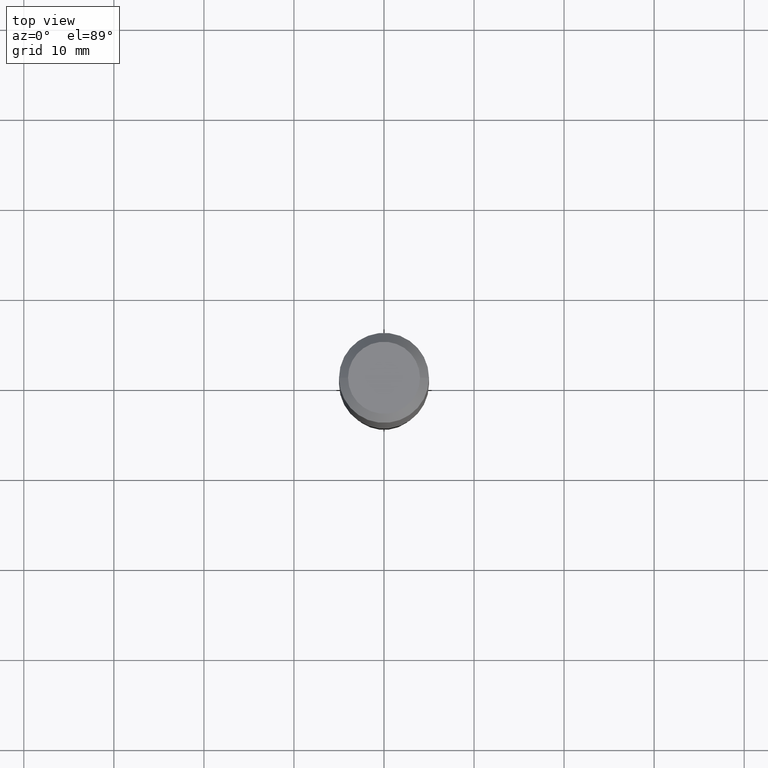
[diagram: clean part render]
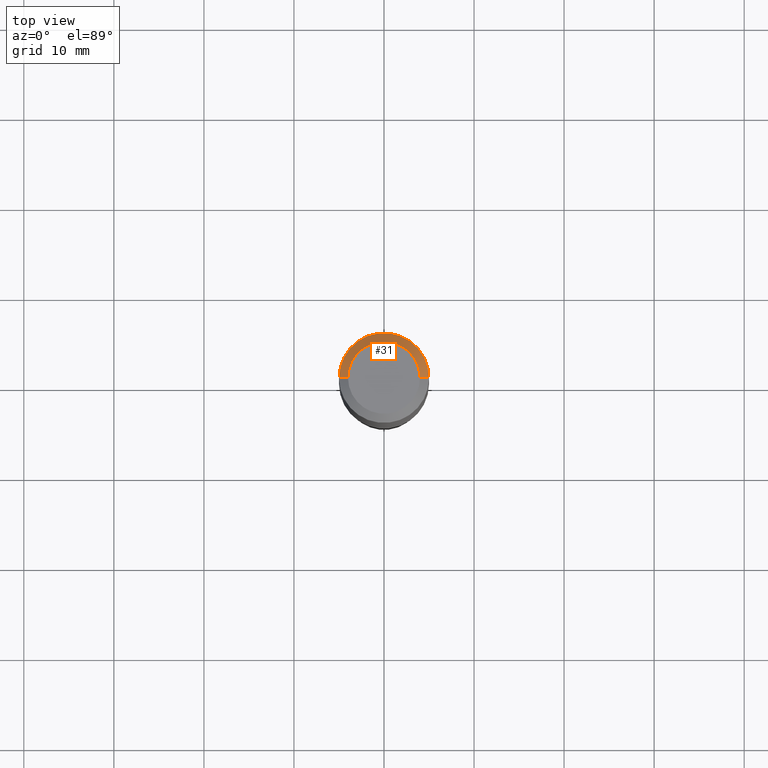
[diagram: same view with one face highlighted and labeled with its STEP entity id]
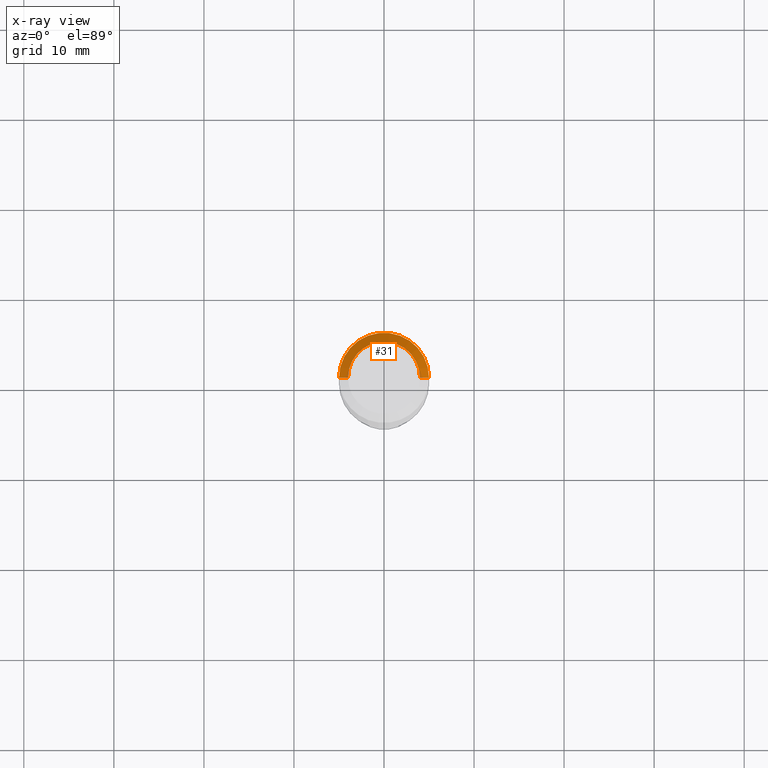
[diagram: x-ray of the same camera — body ghosted, the highlighted face saturated]
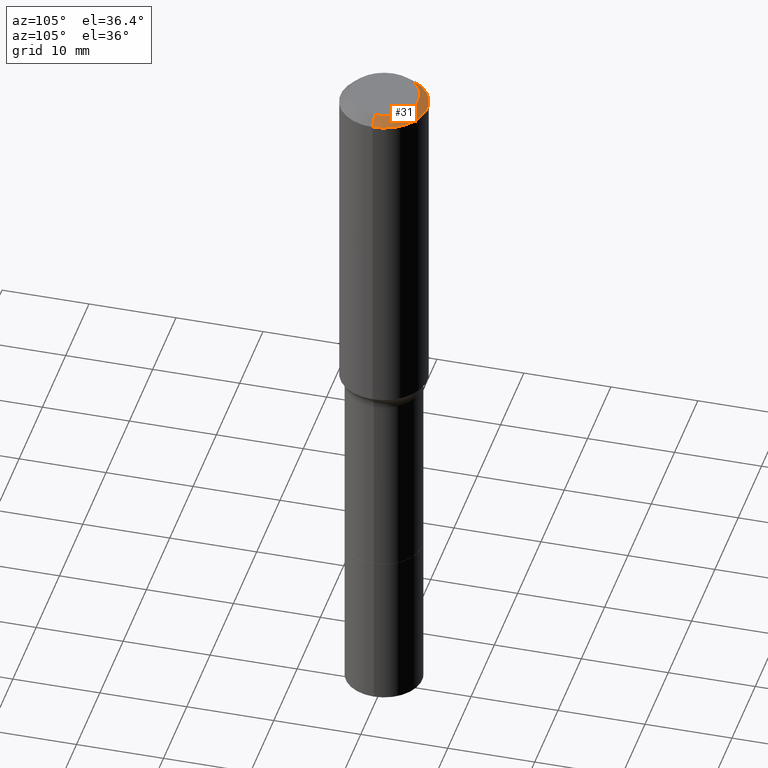
[diagram: same view with one face highlighted and labeled with its STEP entity id]
A machine part, top view. The second image highlights one B-rep face of the part: STEP entity #31.
The next image is the same camera in x-ray: the body ghosted, the highlighted face saturated — about 0% of this face is hidden behind the body in this view.
A second angle (auxiliary view) of the same face is appended — the face is thin or edge-on in the first view.
In plain terms, the highlighted conical surface has half-angle 45 deg.
Its self-contained STEP definition (entity closure, byte-faithful):
#15 = CARTESIAN_POINT ( 'NONE',  ( 9.627810689950950651E-31, -1.374596203102556054E-16, -0.03937000000000027977 ) ) ;
#25 = CARTESIAN_POINT ( 'NONE',  ( 0.1574800000000000089, -1.284169937930321189E-15, 3.855188123724205385E-18 ) ) ;
#29 = DIRECTION ( 'NONE',  ( 2.445468806185136597E-29, -3.491481338843145583E-15, -1.000000000000000000 ) ) ;
#31 = ADVANCED_FACE ( 'NONE', ( #256 ), #71, .T. ) ;
#56 = AXIS2_PLACEMENT_3D ( 'NONE', #424, #29, #65 ) ;
#58 = DIRECTION ( 'NONE',  ( -2.445468806185136597E-29, 3.491481338843145583E-15, 1.000000000000000000 ) ) ;
#65 = DIRECTION ( 'NONE',  ( -1.000000000000000000, 6.982962677686265922E-15, 0.000000000000000000 ) ) ;
#71 = CONICAL_SURFACE ( 'NONE', #56, 0.1968500000000000250, 0.7853981633974447263 ) ;
#73 = VERTEX_POINT ( 'NONE', #25 ) ;
#124 = ORIENTED_EDGE ( 'NONE', *, *, #438, .T. ) ;
#157 = ORIENTED_EDGE ( 'NONE', *, *, #347, .F. ) ;
#165 = CIRCLE ( 'NONE', #309, 0.1574800000000000089 ) ;
#178 = CARTESIAN_POINT ( 'NONE',  ( 0.1968500000000000250, -1.512055823412797189E-15, -0.03937000000000027977 ) ) ;
#201 = CARTESIAN_POINT ( 'NONE',  ( -0.1574800000000000089, 1.168406772637159618E-15, 3.855188123707939751E-18 ) ) ;
#208 = AXIS2_PLACEMENT_3D ( 'NONE', #15, #458, #377 ) ;
#246 = ORIENTED_EDGE ( 'NONE', *, *, #494, .F. ) ;
#248 = CIRCLE ( 'NONE', #208, 0.1968500000000000250 ) ;
#256 = FACE_OUTER_BOUND ( 'NONE', #478, .T. ) ;
#263 = DIRECTION ( 'NONE',  ( 0.7071067811865450192, -7.319954787623246579E-15, -0.7071067811865500152 ) ) ;
#276 = CARTESIAN_POINT ( 'NONE',  ( -0.1968500000000000250, 1.237136582792286225E-15, -0.03937000000000027977 ) ) ;
#292 = VERTEX_POINT ( 'NONE', #201 ) ;
#295 = CARTESIAN_POINT ( 'NONE',  ( -0.1968500000000000250, -1.319675416886158354E-15, -0.03937000000000027977 ) ) ;
#305 = LINE ( 'NONE', #423, #483 ) ;
#309 = AXIS2_PLACEMENT_3D ( 'NONE', #374, #58, #386 ) ;
#320 = VERTEX_POINT ( 'NONE', #178 ) ;
#347 = EDGE_CURVE ( 'NONE', #73, #292, #165, .T. ) ;
#359 = VERTEX_POINT ( 'NONE', #295 ) ;
#368 = ORIENTED_EDGE ( 'NONE', *, *, #400, .T. ) ;
#374 = CARTESIAN_POINT ( 'NONE',  ( -9.427742298522567634E-47, 1.346031739168368355E-32, 3.855188123715870730E-18 ) ) ;
#377 = DIRECTION ( 'NONE',  ( 1.000000000000000000, -6.982962677686265922E-15, 0.000000000000000000 ) ) ;
#386 = DIRECTION ( 'NONE',  ( 1.000000000000000000, -6.982962677686265922E-15, 4.876223630392693006E-29 ) ) ;
#400 = EDGE_CURVE ( 'NONE', #320, #359, #248, .T. ) ;
#423 = CARTESIAN_POINT ( 'NONE',  ( 0.1968500000000000250, -1.487948651171581601E-15, -0.03937000000000027977 ) ) ;
#424 = CARTESIAN_POINT ( 'NONE',  ( 9.627810689950950651E-31, -1.374596203102556054E-16, -0.03937000000000027977 ) ) ;
#438 = EDGE_CURVE ( 'NONE', #73, #320, #305, .T. ) ;
#440 = DIRECTION ( 'NONE',  ( -0.7071067811865450192, 2.468850131082230634E-15, -0.7071067811865500152 ) ) ;
#458 = DIRECTION ( 'NONE',  ( -2.445468806185136597E-29, 3.491481338843145583E-15, 1.000000000000000000 ) ) ;
#476 = LINE ( 'NONE', #276, #513 ) ;
#478 = EDGE_LOOP ( 'NONE', ( #157, #124, #368, #246 ) ) ;
#483 = VECTOR ( 'NONE', #263, 39.37007874015748143 ) ;
#494 = EDGE_CURVE ( 'NONE', #292, #359, #476, .T. ) ;
#513 = VECTOR ( 'NONE', #440, 39.37007874015748143 ) ;